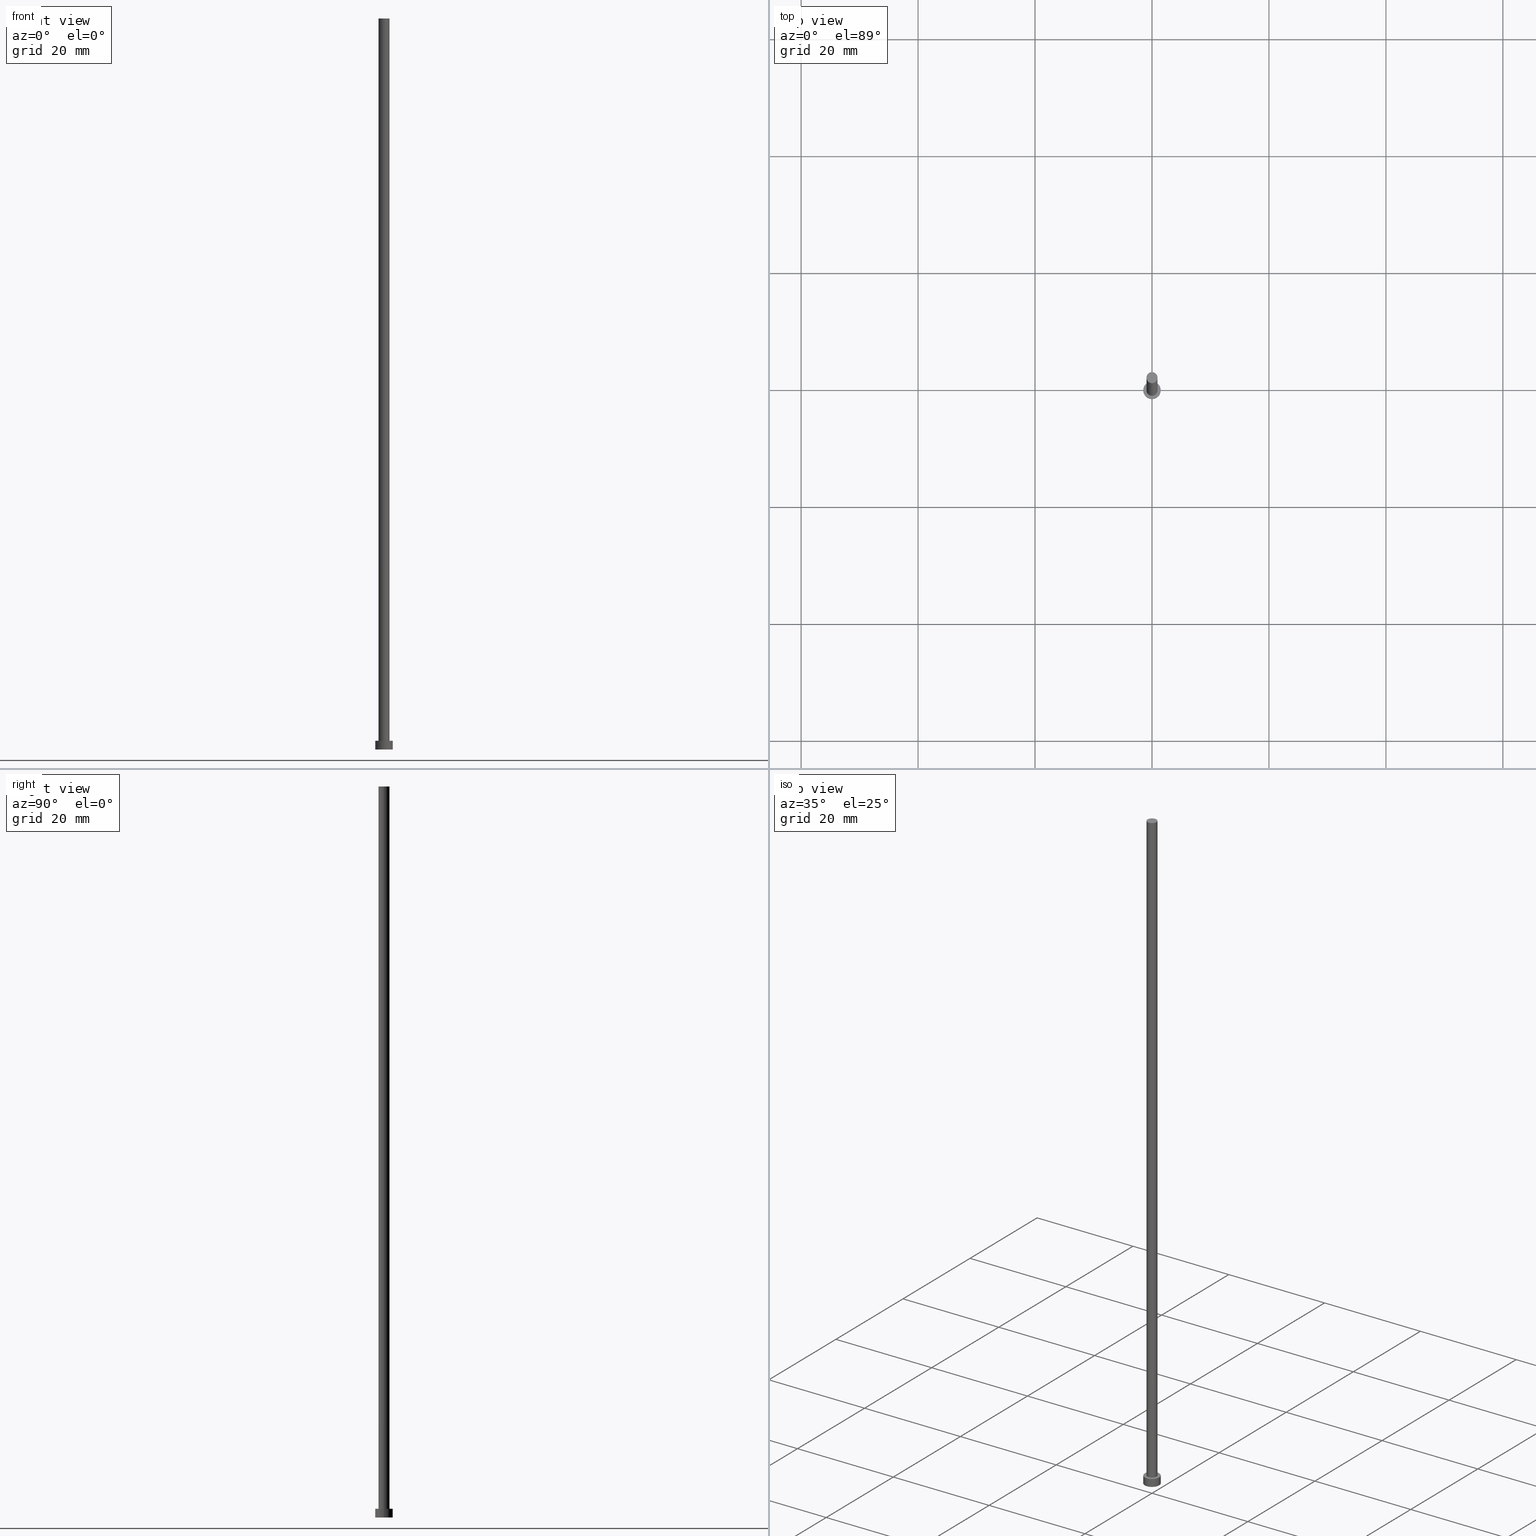
[diagram: canonical four-view strip — front | top / right | iso, engineering-drawing reading convention]
A machine part, canonical four-view strip (front | top / right | iso — engineering-drawing reading convention). The complete STEP part file that produces these views, byte-faithful:
ISO-10303-21;
HEADER;
FILE_DESCRIPTION (( 'STEP AP203' ),
    '1' );
FILE_NAME ('dfbd.STEP',
    '2023-02-13T14:56:42',
    ( '' ),
    ( '' ),
    'SwSTEP 2.0',
    'SolidWorks 2019',
    '' );
FILE_SCHEMA (( 'CONFIG_CONTROL_DESIGN' ));
ENDSEC;

DATA;
#1 = LOCAL_TIME ( 15, 56, 42.00000000000000000, #210 ) ;
#2 = AXIS2_PLACEMENT_3D ( 'NONE', #58, #173, #105 ) ;
#3 = CARTESIAN_POINT ( 'NONE',  ( 0.000000000000000000, 0.000000000000000000, 1.500000000000000000 ) ) ;
#4 = CC_DESIGN_APPROVAL ( #44, ( #49 ) ) ;
#5 = DIRECTION ( 'NONE',  ( 1.000000000000000000, 0.000000000000000000, 0.000000000000000000 ) ) ;
#6 = DIRECTION ( 'NONE',  ( 0.000000000000000000, 0.000000000000000000, 1.000000000000000000 ) ) ;
#7 = EDGE_LOOP ( 'NONE', ( #162, #171, #43, #69 ) ) ;
#8 = CALENDAR_DATE ( 2023, 13, 2 ) ;
#9 = VERTEX_POINT ( 'NONE', #71 ) ;
#10 = CLOSED_SHELL ( 'NONE', ( #204, #178, #117, #202, #80, #175, #150 ) ) ;
#11 = EDGE_LOOP ( 'NONE', ( #208, #140 ) ) ;
#12 = APPROVAL_DATE_TIME ( #189, #29 ) ;
#13 = CARTESIAN_POINT ( 'NONE',  ( -1.500000000000000222, 0.000000000000000000, 1.500000000000000000 ) ) ;
#14 = APPROVAL_DATE_TIME ( #72, #44 ) ;
#15 = ORIENTED_EDGE ( 'NONE', *, *, #219, .T. ) ;
#16 = DATE_AND_TIME ( #8, #186 ) ;
#17 = ORIENTED_EDGE ( 'NONE', *, *, #218, .T. ) ;
#18 = ORIENTED_EDGE ( 'NONE', *, *, #130, .F. ) ;
#19 = FACE_OUTER_BOUND ( 'NONE', #142, .T. ) ;
#20 = DIRECTION ( 'NONE',  ( -1.000000000000000000, 0.000000000000000000, 0.000000000000000000 ) ) ;
#21 = CC_DESIGN_PERSON_AND_ORGANIZATION_ASSIGNMENT ( #87, #139, ( #152 ) ) ;
#22 = AXIS2_PLACEMENT_3D ( 'NONE', #211, #111, #251 ) ;
#23 = CYLINDRICAL_SURFACE ( 'NONE', #148, 0.9499999999999999556 ) ;
#24 = CC_DESIGN_PERSON_AND_ORGANIZATION_ASSIGNMENT ( #184, #143, ( #49 ) ) ;
#25 = CIRCLE ( 'NONE', #245, 1.500000000000000222 ) ;
#26 = AXIS2_PLACEMENT_3D ( 'NONE', #28, #30, #212 ) ;
#27 = CARTESIAN_POINT ( 'NONE',  ( 0.000000000000000000, 0.000000000000000000, 0.000000000000000000 ) ) ;
#28 = CARTESIAN_POINT ( 'NONE',  ( 0.000000000000000000, 0.000000000000000000, 0.000000000000000000 ) ) ;
#29 = APPROVAL ( #52, 'NEUR�EN�' ) ;
#30 = DIRECTION ( 'NONE',  ( 0.000000000000000000, 0.000000000000000000, 1.000000000000000000 ) ) ;
#31 = PRODUCT ( 'dfbd', 'dfbd', '', ( #191 ) ) ;
#32 = ORIENTED_EDGE ( 'NONE', *, *, #170, .F. ) ;
#33 = COORDINATED_UNIVERSAL_TIME_OFFSET ( 1, 0, .AHEAD. ) ;
#34 = CARTESIAN_POINT ( 'NONE',  ( -1.500000000000000222, 0.000000000000000000, 0.000000000000000000 ) ) ;
#35 = APPROVAL_STATUS ( 'not_yet_approved' ) ;
#36 = LINE ( 'NONE', #57, #99 ) ;
#37 = ORIENTED_EDGE ( 'NONE', *, *, #233, .T. ) ;
#38 = DATE_TIME_ROLE ( 'creation_date' ) ;
#39 = CC_DESIGN_PERSON_AND_ORGANIZATION_ASSIGNMENT ( #85, #138, ( #31 ) ) ;
#40 = DIRECTION ( 'NONE',  ( -1.000000000000000000, 0.000000000000000000, 0.000000000000000000 ) ) ;
#41 = UNCERTAINTY_MEASURE_WITH_UNIT (LENGTH_MEASURE( 1.000000000000000082E-05 ), #114, 'distance_accuracy_value', 'NONE');
#42 = PRODUCT_RELATED_PRODUCT_CATEGORY ( 'detail', '', ( #31 ) ) ;
#43 = ORIENTED_EDGE ( 'NONE', *, *, #66, .T. ) ;
#44 = APPROVAL ( #124, 'NEUR�EN�' ) ;
#45 = CARTESIAN_POINT ( 'NONE',  ( 0.000000000000000000, 0.000000000000000000, 0.000000000000000000 ) ) ;
#46 = LINE ( 'NONE', #203, #98 ) ;
#47 = DIRECTION ( 'NONE',  ( 0.000000000000000000, 0.000000000000000000, 1.000000000000000000 ) ) ;
#48 = LOCAL_TIME ( 15, 56, 42.00000000000000000, #33 ) ;
#49 = PRODUCT_DEFINITION ( 'NEZN�M�', '', #200, #217 ) ;
#50 = COORDINATED_UNIVERSAL_TIME_OFFSET ( 1, 0, .AHEAD. ) ;
#51 = FACE_OUTER_BOUND ( 'NONE', #120, .T. ) ;
#52 = APPROVAL_STATUS ( 'not_yet_approved' ) ;
#53 = APPLICATION_CONTEXT ( 'configuration controlled 3d designs of mechanical parts and assemblies' ) ;
#54 = APPROVAL_PERSON_ORGANIZATION ( #104, #64, #70 ) ;
#55 = AXIS2_PLACEMENT_3D ( 'NONE', #94, #235, #177 ) ;
#56 = DIRECTION ( 'NONE',  ( 1.000000000000000000, 0.000000000000000000, 0.000000000000000000 ) ) ;
#57 = CARTESIAN_POINT ( 'NONE',  ( -0.9499999999999999556, 0.000000000000000000, 125.0000000000000000 ) ) ;
#58 = CARTESIAN_POINT ( 'NONE',  ( 0.000000000000000000, 0.000000000000000000, 0.000000000000000000 ) ) ;
#59 = LINE ( 'NONE', #238, #230 ) ;
#60 = FACE_OUTER_BOUND ( 'NONE', #7, .T. ) ;
#61 = AXIS2_PLACEMENT_3D ( 'NONE', #81, #6, #221 ) ;
#62 = DIRECTION ( 'NONE',  ( -0.000000000000000000, -0.000000000000000000, -1.000000000000000000 ) ) ;
#63 = CARTESIAN_POINT ( 'NONE',  ( 0.000000000000000000, 0.000000000000000000, 1.500000000000000000 ) ) ;
#64 = APPROVAL ( #35, 'NEUR�EN�' ) ;
#65 = DIRECTION ( 'NONE',  ( -1.000000000000000000, 0.000000000000000000, 0.000000000000000000 ) ) ;
#66 = EDGE_CURVE ( 'NONE', #89, #176, #36, .T. ) ;
#67 = AXIS2_PLACEMENT_3D ( 'NONE', #154, #136, #220 ) ;
#68 =( NAMED_UNIT ( * ) SI_UNIT ( $, .STERADIAN. ) SOLID_ANGLE_UNIT ( ) );
#69 = ORIENTED_EDGE ( 'NONE', *, *, #157, .T. ) ;
#70 = APPROVAL_ROLE ( '' ) ;
#71 = CARTESIAN_POINT ( 'NONE',  ( -1.500000000000000222, 0.000000000000000000, 1.500000000000000000 ) ) ;
#72 = DATE_AND_TIME ( #248, #197 ) ;
#73 = VERTEX_POINT ( 'NONE', #34 ) ;
#74 = APPLICATION_PROTOCOL_DEFINITION ( 'international standard', 'config_control_design', 1994, #179 ) ;
#75 = FACE_OUTER_BOUND ( 'NONE', #122, .T. ) ;
#76 = VERTEX_POINT ( 'NONE', #224 ) ;
#77 = VERTEX_POINT ( 'NONE', #108 ) ;
#78 = DIRECTION ( 'NONE',  ( 1.000000000000000000, 0.000000000000000000, -0.000000000000000000 ) ) ;
#79 = CYLINDRICAL_SURFACE ( 'NONE', #55, 1.500000000000000222 ) ;
#80 = ADVANCED_FACE ( 'NONE', ( #51 ), #234, .F. ) ;
#81 = CARTESIAN_POINT ( 'NONE',  ( 0.000000000000000000, 0.000000000000000000, 1.500000000000000000 ) ) ;
#82 = CC_DESIGN_PERSON_AND_ORGANIZATION_ASSIGNMENT ( #90, #92, ( #200 ) ) ;
#83 = ORIENTED_EDGE ( 'NONE', *, *, #218, .F. ) ;
#84 = DIRECTION ( 'NONE',  ( 1.000000000000000000, 0.000000000000000000, 0.000000000000000000 ) ) ;
#85 = PERSON_AND_ORGANIZATION ( #129, #156 ) ;
#86 = ORIENTED_EDGE ( 'NONE', *, *, #130, .T. ) ;
#87 = PERSON_AND_ORGANIZATION ( #129, #156 ) ;
#88 = ORIENTED_EDGE ( 'NONE', *, *, #135, .T. ) ;
#89 = VERTEX_POINT ( 'NONE', #187 ) ;
#90 = PERSON_AND_ORGANIZATION ( #129, #156 ) ;
#91 = ORIENTED_EDGE ( 'NONE', *, *, #237, .T. ) ;
#92 = PERSON_AND_ORGANIZATION_ROLE ( 'creator' ) ;
#93 = DIRECTION ( 'NONE',  ( 1.000000000000000000, 0.000000000000000000, 0.000000000000000000 ) ) ;
#94 = CARTESIAN_POINT ( 'NONE',  ( 0.000000000000000000, 0.000000000000000000, 1.500000000000000000 ) ) ;
#95 = CIRCLE ( 'NONE', #128, 1.500000000000000222 ) ;
#96 = FACE_OUTER_BOUND ( 'NONE', #167, .T. ) ;
#97 = CARTESIAN_POINT ( 'NONE',  ( -0.9499999999999999556, 0.000000000000000000, 1.500000000000000000 ) ) ;
#98 = VECTOR ( 'NONE', #222, 1000.000000000000000 ) ;
#99 = VECTOR ( 'NONE', #109, 1000.000000000000000 ) ;
#100 = DIRECTION ( 'NONE',  ( 0.000000000000000000, 0.000000000000000000, 1.000000000000000000 ) ) ;
#101 = CIRCLE ( 'NONE', #183, 0.9499999999999999556 ) ;
#102 = DIRECTION ( 'NONE',  ( 1.000000000000000000, 0.000000000000000000, 0.000000000000000000 ) ) ;
#103 = EDGE_LOOP ( 'NONE', ( #232, #185, #15, #147 ) ) ;
#104 = PERSON_AND_ORGANIZATION ( #129, #156 ) ;
#105 = DIRECTION ( 'NONE',  ( 1.000000000000000000, 0.000000000000000000, -0.000000000000000000 ) ) ;
#106 = CC_DESIGN_DATE_AND_TIME_ASSIGNMENT ( #225, #38, ( #49 ) ) ;
#107 = CALENDAR_DATE ( 2023, 13, 2 ) ;
#108 = CARTESIAN_POINT ( 'NONE',  ( 0.9499999999999999556, 1.163414459189985682E-16, 125.0000000000000000 ) ) ;
#109 = DIRECTION ( 'NONE',  ( -0.000000000000000000, -0.000000000000000000, -1.000000000000000000 ) ) ;
#110 =( NAMED_UNIT ( * ) PLANE_ANGLE_UNIT ( ) SI_UNIT ( $, .RADIAN. ) );
#111 = DIRECTION ( 'NONE',  ( 0.000000000000000000, 0.000000000000000000, 1.000000000000000000 ) ) ;
#112 = VERTEX_POINT ( 'NONE', #206 ) ;
#113 =( GEOMETRIC_REPRESENTATION_CONTEXT ( 3 ) GLOBAL_UNCERTAINTY_ASSIGNED_CONTEXT ( ( #41 ) ) GLOBAL_UNIT_ASSIGNED_CONTEXT ( ( #114, #110, #68 ) ) REPRESENTATION_CONTEXT ( 'NONE', 'WORKASPACE' ) );
#114 =( LENGTH_UNIT ( ) NAMED_UNIT ( * ) SI_UNIT ( .MILLI., .METRE. ) );
#115 = CC_DESIGN_DATE_AND_TIME_ASSIGNMENT ( #164, #168, ( #152 ) ) ;
#116 = APPROVAL_PERSON_ORGANIZATION ( #223, #44, #146 ) ;
#117 = ADVANCED_FACE ( 'NONE', ( #226 ), #126, .T. ) ;
#118 = CARTESIAN_POINT ( 'NONE',  ( 1.500000000000000222, 1.836970198721030181E-16, 1.500000000000000000 ) ) ;
#119 = CALENDAR_DATE ( 2023, 13, 2 ) ;
#120 = EDGE_LOOP ( 'NONE', ( #249, #32 ) ) ;
#121 = APPROVAL_ROLE ( '' ) ;
#122 = EDGE_LOOP ( 'NONE', ( #88, #214 ) ) ;
#123 = VECTOR ( 'NONE', #145, 1000.000000000000000 ) ;
#124 = APPROVAL_STATUS ( 'not_yet_approved' ) ;
#125 = PLANE ( 'NONE',  #22 ) ;
#126 = CYLINDRICAL_SURFACE ( 'NONE', #195, 1.500000000000000222 ) ;
#127 = CARTESIAN_POINT ( 'NONE',  ( 0.000000000000000000, 0.000000000000000000, 125.0000000000000000 ) ) ;
#128 = AXIS2_PLACEMENT_3D ( 'NONE', #63, #134, #102 ) ;
#129 = PERSON ( 'NEUR�EN�', 'NEUR�EN�', 'NEUR�EN�', ('NEUR�EN�'), ('NEUR�EN�'), ('NEUR�EN�') ) ;
#130 = EDGE_CURVE ( 'NONE', #9, #73, #165, .T. ) ;
#131 = CYLINDRICAL_SURFACE ( 'NONE', #227, 0.9499999999999999556 ) ;
#132 = CIRCLE ( 'NONE', #61, 0.9499999999999999556 ) ;
#133 = FACE_BOUND ( 'NONE', #11, .T. ) ;
#134 = DIRECTION ( 'NONE',  ( 0.000000000000000000, 0.000000000000000000, 1.000000000000000000 ) ) ;
#135 = EDGE_CURVE ( 'NONE', #89, #77, #198, .T. ) ;
#136 = DIRECTION ( 'NONE',  ( 0.000000000000000000, 0.000000000000000000, 1.000000000000000000 ) ) ;
#137 = APPROVAL_PERSON_ORGANIZATION ( #141, #29, #121 ) ;
#138 = PERSON_AND_ORGANIZATION_ROLE ( 'design_owner' ) ;
#139 = PERSON_AND_ORGANIZATION_ROLE ( 'classification_officer' ) ;
#140 = ORIENTED_EDGE ( 'NONE', *, *, #219, .F. ) ;
#141 = PERSON_AND_ORGANIZATION ( #129, #156 ) ;
#142 = EDGE_LOOP ( 'NONE', ( #37, #17 ) ) ;
#143 = PERSON_AND_ORGANIZATION_ROLE ( 'creator' ) ;
#144 = CC_DESIGN_APPROVAL ( #64, ( #200 ) ) ;
#145 = DIRECTION ( 'NONE',  ( -0.000000000000000000, -0.000000000000000000, -1.000000000000000000 ) ) ;
#146 = APPROVAL_ROLE ( '' ) ;
#147 = ORIENTED_EDGE ( 'NONE', *, *, #66, .F. ) ;
#148 = AXIS2_PLACEMENT_3D ( 'NONE', #236, #62, #20 ) ;
#149 = DIRECTION ( 'NONE',  ( 0.000000000000000000, 0.000000000000000000, 1.000000000000000000 ) ) ;
#150 = ADVANCED_FACE ( 'NONE', ( #75 ), #125, .T. ) ;
#151 = FACE_OUTER_BOUND ( 'NONE', #103, .T. ) ;
#152 = SECURITY_CLASSIFICATION ( '', '', #228 ) ;
#153 = PRODUCT_DEFINITION_SHAPE ( 'NONE', 'NONE',  #49 ) ;
#154 = CARTESIAN_POINT ( 'NONE',  ( 0.000000000000000000, 0.000000000000000000, 1.500000000000000000 ) ) ;
#155 = ADVANCED_BREP_SHAPE_REPRESENTATION ( 'dfbd', ( #253, #26 ), #113 ) ;
#156 = ORGANIZATION ( 'NEUR�EN�', 'NEUR�EN�', '' ) ;
#157 = EDGE_CURVE ( 'NONE', #176, #112, #239, .T. ) ;
#158 = CC_DESIGN_PERSON_AND_ORGANIZATION_ASSIGNMENT ( #254, #246, ( #200 ) ) ;
#159 = CC_DESIGN_APPROVAL ( #29, ( #152 ) ) ;
#160 = CC_DESIGN_SECURITY_CLASSIFICATION ( #152, ( #200 ) ) ;
#161 = COORDINATED_UNIVERSAL_TIME_OFFSET ( 1, 0, .AHEAD. ) ;
#162 = ORIENTED_EDGE ( 'NONE', *, *, #199, .F. ) ;
#163 = AXIS2_PLACEMENT_3D ( 'NONE', #45, #196, #240 ) ;
#164 = DATE_AND_TIME ( #119, #242 ) ;
#165 = LINE ( 'NONE', #13, #123 ) ;
#166 = APPLICATION_PROTOCOL_DEFINITION ( 'international standard', 'config_control_design', 1994, #53 ) ;
#167 = EDGE_LOOP ( 'NONE', ( #83, #91, #169, #18 ) ) ;
#168 = DATE_TIME_ROLE ( 'classification_date' ) ;
#169 = ORIENTED_EDGE ( 'NONE', *, *, #170, .T. ) ;
#170 = EDGE_CURVE ( 'NONE', #76, #73, #188, .T. ) ;
#171 = ORIENTED_EDGE ( 'NONE', *, *, #135, .F. ) ;
#172 = CALENDAR_DATE ( 2023, 13, 2 ) ;
#173 = DIRECTION ( 'NONE',  ( 0.000000000000000000, 0.000000000000000000, 1.000000000000000000 ) ) ;
#174 = PLANE ( 'NONE',  #252 ) ;
#175 = ADVANCED_FACE ( 'NONE', ( #60 ), #23, .T. ) ;
#176 = VERTEX_POINT ( 'NONE', #97 ) ;
#177 = DIRECTION ( 'NONE',  ( -1.000000000000000000, 0.000000000000000000, 0.000000000000000000 ) ) ;
#178 = ADVANCED_FACE ( 'NONE', ( #96 ), #79, .T. ) ;
#179 = APPLICATION_CONTEXT ( 'configuration controlled 3d designs of mechanical parts and assemblies' ) ;
#180 = DIRECTION ( 'NONE',  ( -0.000000000000000000, -0.000000000000000000, -1.000000000000000000 ) ) ;
#181 = CIRCLE ( 'NONE', #67, 1.500000000000000222 ) ;
#182 = AXIS2_PLACEMENT_3D ( 'NONE', #192, #194, #93 ) ;
#183 = AXIS2_PLACEMENT_3D ( 'NONE', #241, #47, #84 ) ;
#184 = PERSON_AND_ORGANIZATION ( #129, #156 ) ;
#185 = ORIENTED_EDGE ( 'NONE', *, *, #199, .T. ) ;
#186 = LOCAL_TIME ( 15, 56, 42.00000000000000000, #207 ) ;
#187 = CARTESIAN_POINT ( 'NONE',  ( -0.9499999999999999556, 0.000000000000000000, 125.0000000000000000 ) ) ;
#188 = CIRCLE ( 'NONE', #163, 1.500000000000000222 ) ;
#189 = DATE_AND_TIME ( #107, #48 ) ;
#190 = CARTESIAN_POINT ( 'NONE',  ( 0.000000000000000000, 0.000000000000000000, 1.500000000000000000 ) ) ;
#191 = MECHANICAL_CONTEXT ( 'NONE', #53, 'mechanical' ) ;
#192 = CARTESIAN_POINT ( 'NONE',  ( 0.000000000000000000, 0.000000000000000000, 1.500000000000000000 ) ) ;
#193 = ORIENTED_EDGE ( 'NONE', *, *, #209, .T. ) ;
#194 = DIRECTION ( 'NONE',  ( 0.000000000000000000, 0.000000000000000000, 1.000000000000000000 ) ) ;
#195 = AXIS2_PLACEMENT_3D ( 'NONE', #190, #215, #40 ) ;
#196 = DIRECTION ( 'NONE',  ( 0.000000000000000000, 0.000000000000000000, 1.000000000000000000 ) ) ;
#197 = LOCAL_TIME ( 15, 56, 42.00000000000000000, #161 ) ;
#198 = CIRCLE ( 'NONE', #216, 0.9499999999999999556 ) ;
#199 = EDGE_CURVE ( 'NONE', #77, #112, #59, .T. ) ;
#200 = PRODUCT_DEFINITION_FORMATION_WITH_SPECIFIED_SOURCE ( 'LIBOVOLN�', '', #31, .NOT_KNOWN. ) ;
#201 = DIRECTION ( 'NONE',  ( -0.000000000000000000, -0.000000000000000000, -1.000000000000000000 ) ) ;
#202 = ADVANCED_FACE ( 'NONE', ( #133, #19 ), #174, .T. ) ;
#203 = CARTESIAN_POINT ( 'NONE',  ( 1.500000000000000222, 1.836970198721030181E-16, 1.500000000000000000 ) ) ;
#204 = ADVANCED_FACE ( 'NONE', ( #151 ), #131, .T. ) ;
#205 = APPROVAL_DATE_TIME ( #16, #64 ) ;
#206 = CARTESIAN_POINT ( 'NONE',  ( 0.9499999999999999556, 1.163414459189985682E-16, 1.500000000000000000 ) ) ;
#207 = COORDINATED_UNIVERSAL_TIME_OFFSET ( 1, 0, .AHEAD. ) ;
#208 = ORIENTED_EDGE ( 'NONE', *, *, #157, .F. ) ;
#209 = EDGE_CURVE ( 'NONE', #73, #76, #25, .T. ) ;
#210 = COORDINATED_UNIVERSAL_TIME_OFFSET ( 1, 0, .AHEAD. ) ;
#211 = CARTESIAN_POINT ( 'NONE',  ( 0.000000000000000000, 0.000000000000000000, 125.0000000000000000 ) ) ;
#212 = DIRECTION ( 'NONE',  ( 1.000000000000000000, 0.000000000000000000, 0.000000000000000000 ) ) ;
#213 = VERTEX_POINT ( 'NONE', #118 ) ;
#214 = ORIENTED_EDGE ( 'NONE', *, *, #244, .T. ) ;
#215 = DIRECTION ( 'NONE',  ( -0.000000000000000000, -0.000000000000000000, -1.000000000000000000 ) ) ;
#216 = AXIS2_PLACEMENT_3D ( 'NONE', #127, #229, #56 ) ;
#217 = DESIGN_CONTEXT ( 'detailed design', #179, 'design' ) ;
#218 = EDGE_CURVE ( 'NONE', #213, #9, #95, .T. ) ;
#219 = EDGE_CURVE ( 'NONE', #112, #176, #132, .T. ) ;
#220 = DIRECTION ( 'NONE',  ( 1.000000000000000000, 0.000000000000000000, 0.000000000000000000 ) ) ;
#221 = DIRECTION ( 'NONE',  ( 1.000000000000000000, 0.000000000000000000, 0.000000000000000000 ) ) ;
#222 = DIRECTION ( 'NONE',  ( -0.000000000000000000, -0.000000000000000000, -1.000000000000000000 ) ) ;
#223 = PERSON_AND_ORGANIZATION ( #129, #156 ) ;
#224 = CARTESIAN_POINT ( 'NONE',  ( 1.500000000000000222, 1.836970198721030181E-16, 0.000000000000000000 ) ) ;
#225 = DATE_AND_TIME ( #172, #1 ) ;
#226 = FACE_OUTER_BOUND ( 'NONE', #255, .T. ) ;
#227 = AXIS2_PLACEMENT_3D ( 'NONE', #243, #201, #65 ) ;
#228 = SECURITY_CLASSIFICATION_LEVEL ( 'unclassified' ) ;
#229 = DIRECTION ( 'NONE',  ( 0.000000000000000000, 0.000000000000000000, 1.000000000000000000 ) ) ;
#230 = VECTOR ( 'NONE', #180, 1000.000000000000000 ) ;
#231 = ORIENTED_EDGE ( 'NONE', *, *, #233, .F. ) ;
#232 = ORIENTED_EDGE ( 'NONE', *, *, #244, .F. ) ;
#233 = EDGE_CURVE ( 'NONE', #9, #213, #181, .T. ) ;
#234 = PLANE ( 'NONE',  #2 ) ;
#235 = DIRECTION ( 'NONE',  ( -0.000000000000000000, -0.000000000000000000, -1.000000000000000000 ) ) ;
#236 = CARTESIAN_POINT ( 'NONE',  ( 0.000000000000000000, 0.000000000000000000, 125.0000000000000000 ) ) ;
#237 = EDGE_CURVE ( 'NONE', #213, #76, #46, .T. ) ;
#238 = CARTESIAN_POINT ( 'NONE',  ( 0.9499999999999999556, 1.163414459189985682E-16, 125.0000000000000000 ) ) ;
#239 = CIRCLE ( 'NONE', #182, 0.9499999999999999556 ) ;
#240 = DIRECTION ( 'NONE',  ( 1.000000000000000000, 0.000000000000000000, 0.000000000000000000 ) ) ;
#241 = CARTESIAN_POINT ( 'NONE',  ( 0.000000000000000000, 0.000000000000000000, 125.0000000000000000 ) ) ;
#242 = LOCAL_TIME ( 15, 56, 42.00000000000000000, #50 ) ;
#243 = CARTESIAN_POINT ( 'NONE',  ( 0.000000000000000000, 0.000000000000000000, 125.0000000000000000 ) ) ;
#244 = EDGE_CURVE ( 'NONE', #77, #89, #101, .T. ) ;
#245 = AXIS2_PLACEMENT_3D ( 'NONE', #27, #100, #5 ) ;
#246 = PERSON_AND_ORGANIZATION_ROLE ( 'design_supplier' ) ;
#247 = ORIENTED_EDGE ( 'NONE', *, *, #237, .F. ) ;
#248 = CALENDAR_DATE ( 2023, 13, 2 ) ;
#249 = ORIENTED_EDGE ( 'NONE', *, *, #209, .F. ) ;
#250 = SHAPE_DEFINITION_REPRESENTATION ( #153, #155 ) ;
#251 = DIRECTION ( 'NONE',  ( 1.000000000000000000, 0.000000000000000000, -0.000000000000000000 ) ) ;
#252 = AXIS2_PLACEMENT_3D ( 'NONE', #3, #149, #78 ) ;
#253 = MANIFOLD_SOLID_BREP ( 'P�idat vysunut�m3', #10 ) ;
#254 = PERSON_AND_ORGANIZATION ( #129, #156 ) ;
#255 = EDGE_LOOP ( 'NONE', ( #247, #231, #86, #193 ) ) ;
ENDSEC;
END-ISO-10303-21;
